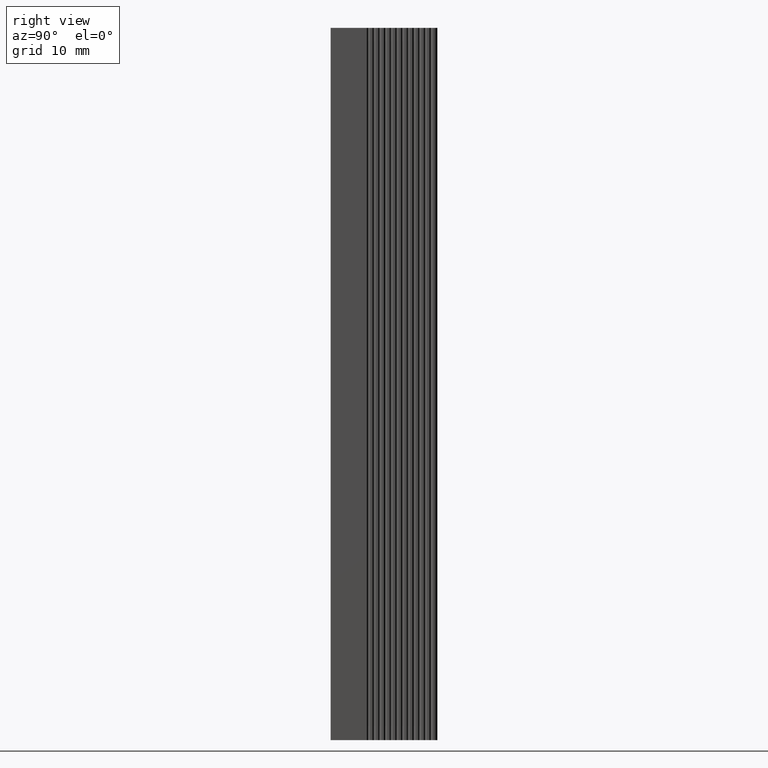
[diagram: clean part render]
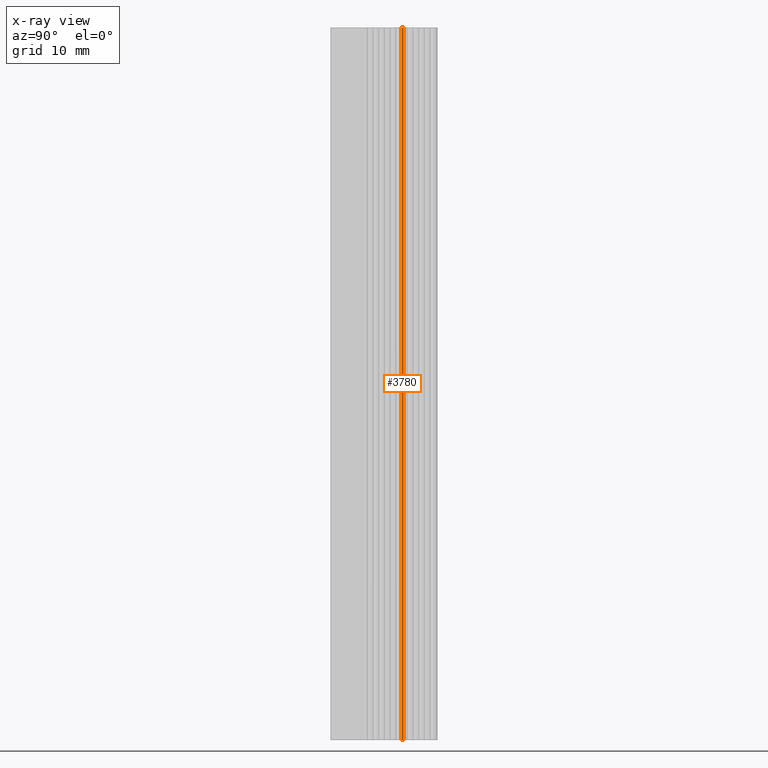
[diagram: x-ray — body ghosted, one internal face saturated and labeled with its STEP entity id]
A machine part, right view, then the same camera in x-ray: the body is ghosted and one INTERNAL B-rep face — a face not visible from any outside direction — is saturated and labeled: STEP entity #3780.
In plain terms, the highlighted cylindrical surface (edge-blend (fillet) strip) has radius 0.15 mm, axis along (-0, -0, -1).
Its self-contained STEP definition (entity closure, byte-faithful):
#638 = AXIS2_PLACEMENT_3D ( 'NONE', #12106, #6318, #15482 ) ;
#1474 = CARTESIAN_POINT ( 'NONE',  ( 7.085714285717736871, 2.723097770996617317, -50.00000000000000000 ) ) ;
#1957 = LINE ( 'NONE', #7447, #18243 ) ;
#2310 = CARTESIAN_POINT ( 'NONE',  ( 7.000000000002746248, 2.600000000001865263, -50.00000000000000000 ) ) ;
#2891 = CARTESIAN_POINT ( 'NONE',  ( 7.000000000002746248, 2.600000000001865263, 50.00000000000000000 ) ) ;
#3724 = DIRECTION ( 'NONE',  ( -0.0000000000000000000, -0.0000000000000000000, -1.000000000000000000 ) ) ;
#3780 = ADVANCED_FACE ( 'NONE', ( #18514 ), #13949, .F. ) ;
#3830 = DIRECTION ( 'NONE',  ( 1.000000000000000000, 0.0000000000000000000, 0.0000000000000000000 ) ) ;
#4087 = EDGE_LOOP ( 'NONE', ( #17875, #15751, #18201, #19291 ) ) ;
#4406 = DIRECTION ( 'NONE',  ( 1.000000000000000000, 0.0000000000000000000, 0.0000000000000000000 ) ) ;
#5572 = LINE ( 'NONE', #19017, #17332 ) ;
#5796 = VERTEX_POINT ( 'NONE', #1474 ) ;
#6318 = DIRECTION ( 'NONE',  ( -0.0000000000000000000, -0.0000000000000000000, -1.000000000000000000 ) ) ;
#6804 = CIRCLE ( 'NONE', #8917, 0.1499999999983580579 ) ;
#7447 = CARTESIAN_POINT ( 'NONE',  ( 7.085714285717736871, 2.723097770996617317, 50.00000000000000000 ) ) ;
#8430 = CARTESIAN_POINT ( 'NONE',  ( 7.085714285716049332, 2.476902229005938150, -50.00000000000000000 ) ) ;
#8692 = CARTESIAN_POINT ( 'NONE',  ( 7.085714285716049332, 2.476902229005938150, 50.00000000000000000 ) ) ;
#8917 = AXIS2_PLACEMENT_3D ( 'NONE', #2891, #13612, #4406 ) ;
#8971 = AXIS2_PLACEMENT_3D ( 'NONE', #2310, #13000, #3830 ) ;
#9923 = EDGE_CURVE ( 'NONE', #14203, #5796, #1957, .T. ) ;
#10497 = DIRECTION ( 'NONE',  ( -0.0000000000000000000, -0.0000000000000000000, -1.000000000000000000 ) ) ;
#11854 = VERTEX_POINT ( 'NONE', #8430 ) ;
#12106 = CARTESIAN_POINT ( 'NONE',  ( 7.000000000002746248, 2.600000000001865263, 50.00000000000000000 ) ) ;
#13000 = DIRECTION ( 'NONE',  ( -0.0000000000000000000, 0.0000000000000000000, 1.000000000000000000 ) ) ;
#13488 = CARTESIAN_POINT ( 'NONE',  ( 7.085714285717736871, 2.723097770996617317, 50.00000000000000000 ) ) ;
#13563 = VERTEX_POINT ( 'NONE', #8692 ) ;
#13612 = DIRECTION ( 'NONE',  ( -0.0000000000000000000, 0.0000000000000000000, 1.000000000000000000 ) ) ;
#13949 = CYLINDRICAL_SURFACE ( 'NONE', #638, 0.1499999999983580579 ) ;
#14005 = EDGE_CURVE ( 'NONE', #11854, #5796, #14451, .T. ) ;
#14203 = VERTEX_POINT ( 'NONE', #13488 ) ;
#14451 = CIRCLE ( 'NONE', #8971, 0.1499999999983580579 ) ;
#15482 = DIRECTION ( 'NONE',  ( -1.000000000000000000, 0.0000000000000000000, 0.0000000000000000000 ) ) ;
#15751 = ORIENTED_EDGE ( 'NONE', *, *, #18621, .F. ) ;
#17332 = VECTOR ( 'NONE', #3724, 1000.000000000000000 ) ;
#17875 = ORIENTED_EDGE ( 'NONE', *, *, #14005, .F. ) ;
#18201 = ORIENTED_EDGE ( 'NONE', *, *, #18269, .T. ) ;
#18243 = VECTOR ( 'NONE', #10497, 1000.000000000000000 ) ;
#18269 = EDGE_CURVE ( 'NONE', #13563, #14203, #6804, .T. ) ;
#18514 = FACE_OUTER_BOUND ( 'NONE', #4087, .T. ) ;
#18621 = EDGE_CURVE ( 'NONE', #13563, #11854, #5572, .T. ) ;
#19017 = CARTESIAN_POINT ( 'NONE',  ( 7.085714285716049332, 2.476902229005938150, 50.00000000000000000 ) ) ;
#19291 = ORIENTED_EDGE ( 'NONE', *, *, #9923, .T. ) ;